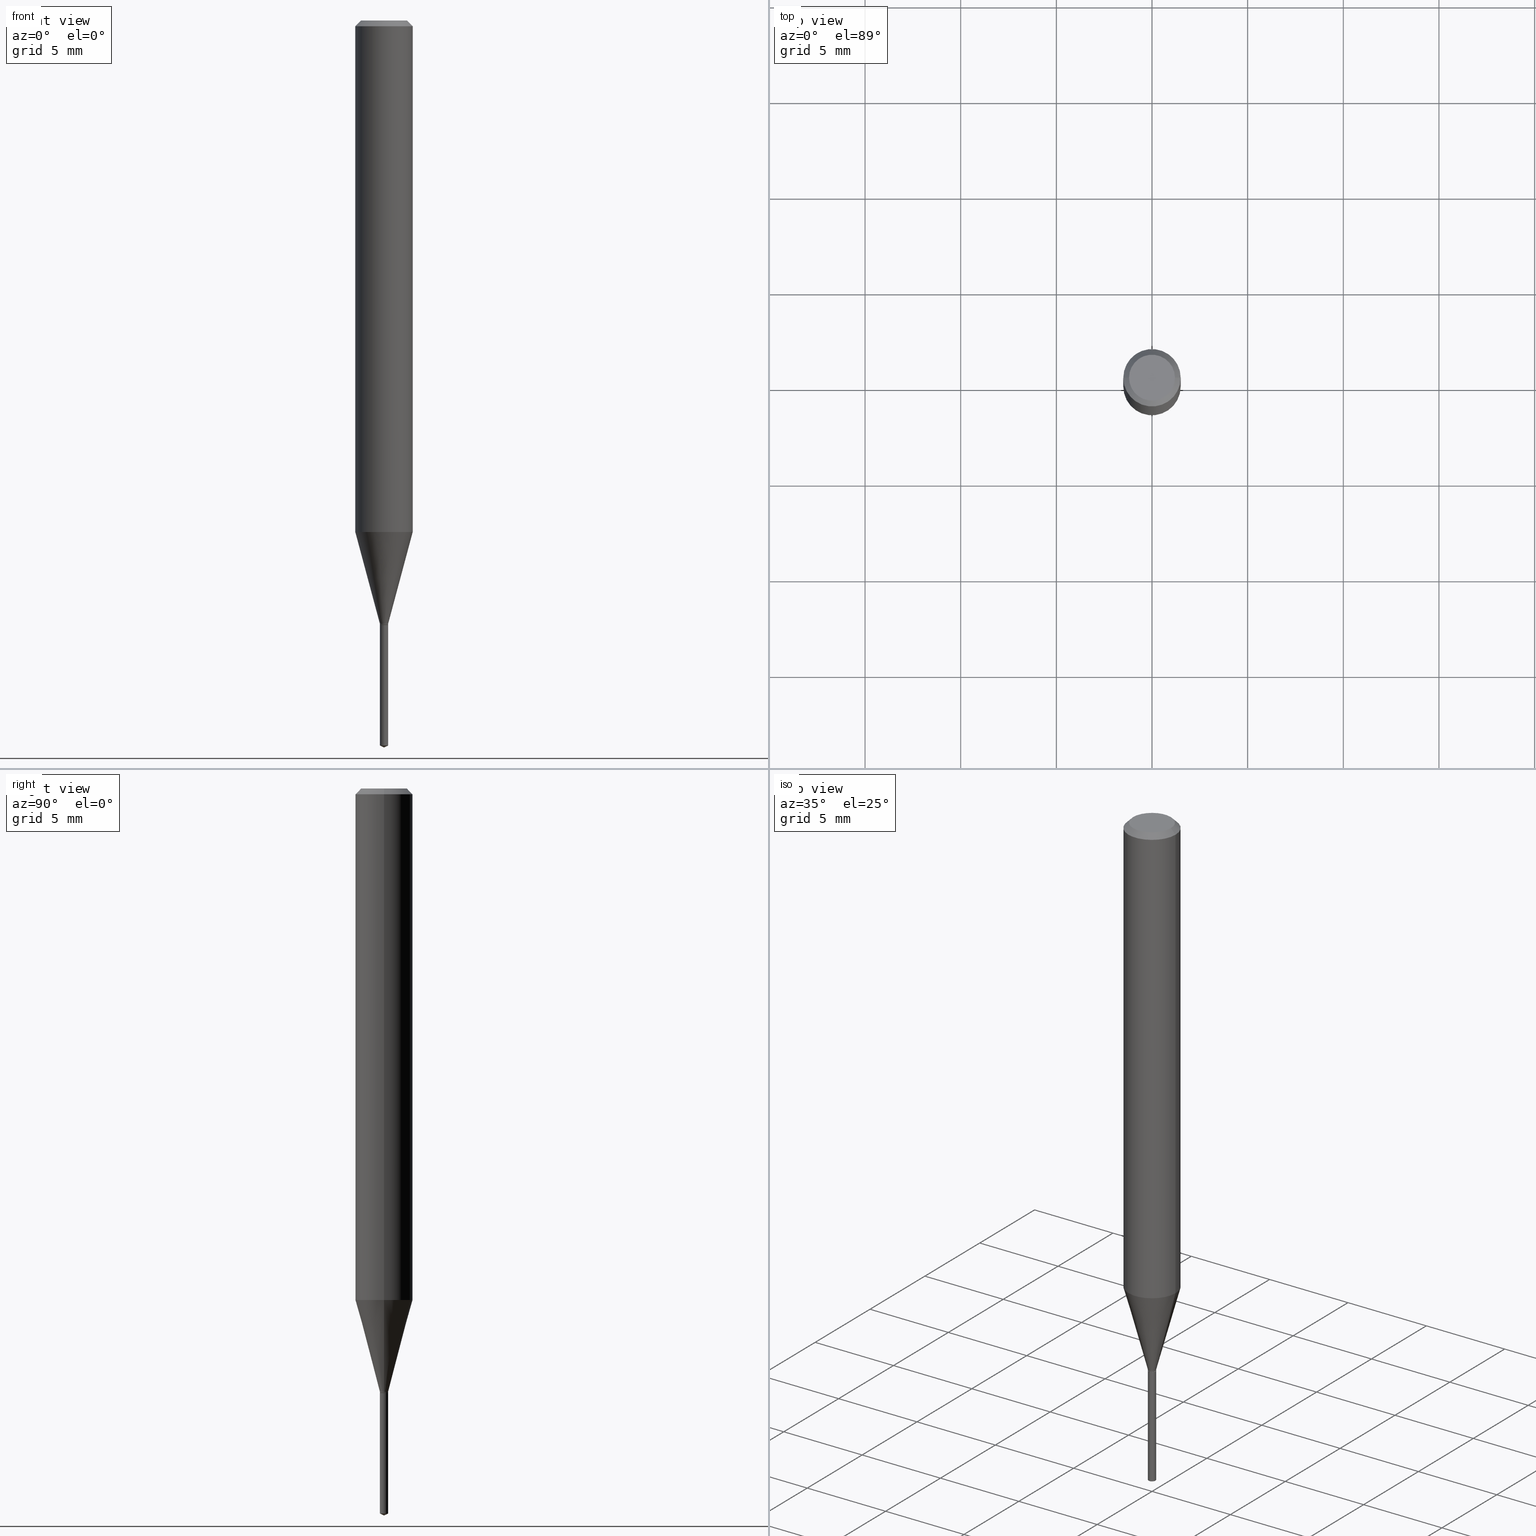
[diagram: canonical four-view strip — front | top / right | iso, engineering-drawing reading convention]
A machine part, canonical four-view strip (front | top / right | iso — engineering-drawing reading convention). The complete STEP part file that produces these views, byte-faithful:
ISO-10303-21;
HEADER;
FILE_DESCRIPTION (( 'STEP AP203' ),
    '1' );
FILE_NAME ('08084.STEP',
    '2024-04-24T10:58:54',
    ( '' ),
    ( '' ),
    'SwSTEP 2.0',
    'SolidWorks 2023',
    '' );
FILE_SCHEMA (( 'CONFIG_CONTROL_DESIGN' ));
ENDSEC;

DATA;
#1 = CARTESIAN_POINT ( 'NONE',  ( -0.008449999999999999178, -4.278473850474763688E-15, -1.243600000000000039 ) ) ;
#2 = FACE_OUTER_BOUND ( 'NONE', #287, .T. ) ;
#3 = LINE ( 'NONE', #297, #263 ) ;
#4 = FACE_OUTER_BOUND ( 'NONE', #174, .T. ) ;
#5 = DIRECTION ( 'NONE',  ( 0.2588190451025211836, 1.565188264969622559E-15, 0.9659258262890679791 ) ) ;
#6 =( GEOMETRIC_REPRESENTATION_CONTEXT ( 3 ) GLOBAL_UNCERTAINTY_ASSIGNED_CONTEXT ( ( #448 ) ) GLOBAL_UNIT_ASSIGNED_CONTEXT ( ( #258, #72, #407 ) ) REPRESENTATION_CONTEXT ( 'NONE', 'WORKASPACE' ) );
#7 = DIRECTION ( 'NONE',  ( -2.445468806185136597E-29, 3.491481338843145583E-15, 1.000000000000000000 ) ) ;
#8 = DIRECTION ( 'NONE',  ( 1.000000000000000000, 0.000000000000000000, 0.000000000000000000 ) ) ;
#9 = CARTESIAN_POINT ( 'NONE',  ( 3.042407741774928155E-29, -4.343751933654757151E-15, -1.244099999999999984 ) ) ;
#10 = DATE_AND_TIME ( #165, #295 ) ;
#11 = CARTESIAN_POINT ( 'NONE',  ( -5.900603462641852024E-17, -0.008450000000004342926, -1.244099999999999984 ) ) ;
#12 = DATE_AND_TIME ( #458, #444 ) ;
#13 = CIRCLE ( 'NONE', #408, 0.008449999999999999178 ) ;
#14 = DIRECTION ( 'NONE',  ( -6.982962677686265922E-15, -1.000000000000000000, 0.000000000000000000 ) ) ;
#15 = CALENDAR_DATE ( 2024, 24, 4 ) ;
#16 = VERTEX_POINT ( 'NONE', #103 ) ;
#17 = SHAPE_DEFINITION_REPRESENTATION ( #144, #48 ) ;
#18 = CC_DESIGN_PERSON_AND_ORGANIZATION_ASSIGNMENT ( #46, #466, ( #247 ) ) ;
#19 = ORIENTED_EDGE ( 'NONE', *, *, #326, .T. ) ;
#20 = AXIS2_PLACEMENT_3D ( 'NONE', #273, #337, #234 ) ;
#21 = CIRCLE ( 'NONE', #333, 0.04724000000000000421 ) ;
#22 = ORIENTED_EDGE ( 'NONE', *, *, #112, .T. ) ;
#23 = CIRCLE ( 'NONE', #393, 0.008449999999999999178 ) ;
#24 = CARTESIAN_POINT ( 'NONE',  ( 3.042407741774928155E-29, -4.343751933654757151E-15, -1.244099999999999984 ) ) ;
#25 = ADVANCED_FACE ( 'NONE', ( #330 ), #105, .T. ) ;
#26 = DIRECTION ( 'NONE',  ( -6.328713451373322836E-15, -0.9063077870366416100, 0.4226182617407170383 ) ) ;
#27 = ORIENTED_EDGE ( 'NONE', *, *, #111, .T. ) ;
#28 = DIRECTION ( 'NONE',  ( 0.7071067811865453523, -7.319954787623248157E-15, -0.7071067811865496822 ) ) ;
#29 = ORIENTED_EDGE ( 'NONE', *, *, #163, .F. ) ;
#30 = AXIS2_PLACEMENT_3D ( 'NONE', #62, #483, #57 ) ;
#31 = APPROVAL_PERSON_ORGANIZATION ( #87, #74, #386 ) ;
#32 = FACE_OUTER_BOUND ( 'NONE', #213, .T. ) ;
#33 = CARTESIAN_POINT ( 'NONE',  ( 6.004086117175886799E-17, 0.008449999999995655431, -1.244099999999999984 ) ) ;
#34 = FACE_OUTER_BOUND ( 'NONE', #209, .T. ) ;
#35 = ORIENTED_EDGE ( 'NONE', *, *, #304, .T. ) ;
#36 = DIRECTION ( 'NONE',  ( -2.445468806185136597E-29, 3.491481338843145583E-15, 1.000000000000000000 ) ) ;
#37 = ORIENTED_EDGE ( 'NONE', *, *, #233, .T. ) ;
#38 = AXIS2_PLACEMENT_3D ( 'NONE', #52, #137, #204 ) ;
#39 = CARTESIAN_POINT ( 'NONE',  ( 3.041185007371835914E-29, -4.342006192985336437E-15, -1.243600000000000039 ) ) ;
#40 = EDGE_CURVE ( 'NONE', #152, #94, #367, .T. ) ;
#41 = DIRECTION ( 'NONE',  ( -2.445468806185136597E-29, 3.491481338843145583E-15, 1.000000000000000000 ) ) ;
#42 = PLANE ( 'NONE',  #20 ) ;
#43 = DIRECTION ( 'NONE',  ( -2.438088387897960049E-29, 3.491481338843145188E-15, 1.000000000000000000 ) ) ;
#44 = DIRECTION ( 'NONE',  ( -2.445453018118844559E-29, 3.491503948252676758E-15, 1.000000000000000000 ) ) ;
#45 = VECTOR ( 'NONE', #292, 39.37007874015748143 ) ;
#46 = PERSON_AND_ORGANIZATION ( #329, #241 ) ;
#47 = CARTESIAN_POINT ( 'NONE',  ( 6.004086117176494469E-17, 0.008449999999994789804, -1.492159700288590019 ) ) ;
#48 = ADVANCED_BREP_SHAPE_REPRESENTATION ( '08084', ( #291, #456, #169 ), #6 ) ;
#49 = DATE_AND_TIME ( #15, #256 ) ;
#50 = CARTESIAN_POINT ( 'NONE',  ( 8.265746106709734507E-48, -1.180129479067563789E-33, -3.380025165646692144E-19 ) ) ;
#51 = COORDINATED_UNIVERSAL_TIME_OFFSET ( 5, 0, .BEHIND. ) ;
#52 = CARTESIAN_POINT ( 'NONE',  ( 3.036294069759465269E-29, -4.335023230307649634E-15, -1.241600000000000037 ) ) ;
#53 = APPROVAL_STATUS ( 'not_yet_approved' ) ;
#54 = VECTOR ( 'NONE', #132, 39.37007874015748143 ) ;
#55 = ORIENTED_EDGE ( 'NONE', *, *, #434, .T. ) ;
#56 = EDGE_CURVE ( 'NONE', #475, #133, #182, .T. ) ;
#57 = DIRECTION ( 'NONE',  ( -1.000000000000000000, 6.982962677686266711E-15, 0.000000000000000000 ) ) ;
#58 = ORIENTED_EDGE ( 'NONE', *, *, #131, .T. ) ;
#59 = FACE_OUTER_BOUND ( 'NONE', #225, .T. ) ;
#60 = ADVANCED_FACE ( 'NONE', ( #449 ), #42, .F. ) ;
#61 = ORIENTED_EDGE ( 'NONE', *, *, #115, .T. ) ;
#62 = CARTESIAN_POINT ( 'NONE',  ( 2.888098660104664204E-31, -4.123439461173780263E-17, -0.01181000000000007218 ) ) ;
#63 = EDGE_LOOP ( 'NONE', ( #324, #440, #180, #281 ) ) ;
#64 = CARTESIAN_POINT ( 'NONE',  ( -0.05904999999999999832, 3.711095515056362547E-16, -0.01181000000000007218 ) ) ;
#65 = DIRECTION ( 'NONE',  ( 1.000000000000000000, -6.982962677686293532E-15, 0.000000000000000000 ) ) ;
#66 = VECTOR ( 'NONE', #26, 39.37007874015748143 ) ;
#67 = APPROVAL_PERSON_ORGANIZATION ( #383, #356, #425 ) ;
#68 = DIRECTION ( 'NONE',  ( -2.445468806185136597E-29, 3.491481338843145583E-15, 1.000000000000000000 ) ) ;
#69 = ORIENTED_EDGE ( 'NONE', *, *, #366, .F. ) ;
#70 = PRODUCT ( '08084', '08084', '', ( #79 ) ) ;
#71 = ORIENTED_EDGE ( 'NONE', *, *, #437, .T. ) ;
#72 =( NAMED_UNIT ( * ) PLANE_ANGLE_UNIT ( ) SI_UNIT ( $, .RADIAN. ) );
#73 = ORIENTED_EDGE ( 'NONE', *, *, #56, .T. ) ;
#74 = APPROVAL ( #266, 'UNSPECIFIED' ) ;
#75 = CYLINDRICAL_SURFACE ( 'NONE', #409, 0.008449999999999999178 ) ;
#76 = CARTESIAN_POINT ( 'NONE',  ( 0.000000000000000000, 0.000000000000000000, 0.000000000000000000 ) ) ;
#77 = FACE_OUTER_BOUND ( 'NONE', #92, .T. ) ;
#78 = DIRECTION ( 'NONE',  ( -2.445468806185136877E-29, 3.491481338843145188E-15, 1.000000000000000000 ) ) ;
#79 = MECHANICAL_CONTEXT ( 'NONE', #249, 'mechanical' ) ;
#80 = ADVANCED_FACE ( 'NONE', ( #2 ), #126, .T. ) ;
#81 = CARTESIAN_POINT ( 'NONE',  ( 0.05905000000000006771, -4.123439461173745257E-16, 2.879382386107503723E-30 ) ) ;
#82 = PERSON_AND_ORGANIZATION_ROLE ( 'design_supplier' ) ;
#83 = CIRCLE ( 'NONE', #450, 0.008449999999999999178 ) ;
#84 = LOCAL_TIME ( 6, 58, 54.00000000000000000, #268 ) ;
#85 = DIRECTION ( 'NONE',  ( -6.982962677686266711E-15, -1.000000000000000000, 3.520397390770616770E-15 ) ) ;
#86 = CARTESIAN_POINT ( 'NONE',  ( -0.008449999999999999178, -4.274982369135920681E-15, -1.241600000000000037 ) ) ;
#87 = PERSON_AND_ORGANIZATION ( #329, #241 ) ;
#88 = DIRECTION ( 'NONE',  ( 1.000000000000000000, -6.982962677686291165E-15, 0.000000000000000000 ) ) ;
#89 = EDGE_LOOP ( 'NONE', ( #427, #260, #73, #277 ) ) ;
#90 = APPROVAL_ROLE ( '' ) ;
#91 = CIRCLE ( 'NONE', #343, 0.05904999999999999832 ) ;
#92 = EDGE_LOOP ( 'NONE', ( #135, #354 ) ) ;
#93 = PRODUCT_RELATED_PRODUCT_CATEGORY ( 'detail', '', ( #70 ) ) ;
#94 = VERTEX_POINT ( 'NONE', #384 ) ;
#95 = APPLICATION_CONTEXT ( 'configuration controlled 3d designs of mechanical parts and assemblies' ) ;
#96 = LINE ( 'NONE', #464, #219 ) ;
#97 = AXIS2_PLACEMENT_3D ( 'NONE', #117, #261, #85 ) ;
#98 = CIRCLE ( 'NONE', #469, 0.05905000000000013710 ) ;
#99 = SECURITY_CLASSIFICATION ( '', '', #272 ) ;
#100 = CARTESIAN_POINT ( 'NONE',  ( -0.04724000000000000421, 3.504923541997677355E-16, -3.380025165670481712E-19 ) ) ;
#101 = ORIENTED_EDGE ( 'NONE', *, *, #212, .F. ) ;
#102 = FACE_OUTER_BOUND ( 'NONE', #220, .T. ) ;
#103 = CARTESIAN_POINT ( 'NONE',  ( -0.007949999999999998734, -4.284614558987718685E-15, -1.244099999999999984 ) ) ;
#104 = DIRECTION ( 'NONE',  ( 1.000000000000000000, -6.982962677686265922E-15, 4.876176775795935793E-29 ) ) ;
#105 = CONICAL_SURFACE ( 'NONE', #173, 0.008449999999999999178, 0.2617993877991499074 ) ;
#106 = ORIENTED_EDGE ( 'NONE', *, *, #112, .F. ) ;
#107 = VECTOR ( 'NONE', #230, 39.37007874015748854 ) ;
#108 = CC_DESIGN_SECURITY_CLASSIFICATION ( #99, ( #344 ) ) ;
#109 = CARTESIAN_POINT ( 'NONE',  ( -0.007949999999999998734, -4.287263786161829886E-15, -1.244099999999999984 ) ) ;
#110 = ORIENTED_EDGE ( 'NONE', *, *, #157, .F. ) ;
#111 = EDGE_CURVE ( 'NONE', #435, #490, #332, .T. ) ;
#112 = EDGE_CURVE ( 'NONE', #133, #250, #262, .T. ) ;
#113 = ORIENTED_EDGE ( 'NONE', *, *, #442, .F. ) ;
#114 = CARTESIAN_POINT ( 'NONE',  ( 3.042407741774928155E-29, -4.343751933654757151E-15, -1.244099999999999984 ) ) ;
#115 = EDGE_CURVE ( 'NONE', #334, #435, #303, .T. ) ;
#116 = ADVANCED_FACE ( 'NONE', ( #342 ), #415, .T. ) ;
#117 = CARTESIAN_POINT ( 'NONE',  ( -9.261901597635378744E-28, 1.322371744356641908E-13, 37.87397874015748300 ) ) ;
#118 = AXIS2_PLACEMENT_3D ( 'NONE', #285, #436, #385 ) ;
#119 = DIRECTION ( 'NONE',  ( 1.000000000000000000, -6.982962677686266711E-15, 4.876176775795936353E-29 ) ) ;
#120 = CARTESIAN_POINT ( 'NONE',  ( 3.042407741774928155E-29, -4.343751933654757151E-15, -1.244099999999999984 ) ) ;
#121 = DIRECTION ( 'NONE',  ( 0.000000000000000000, 0.000000000000000000, 1.000000000000000000 ) ) ;
#122 = DIRECTION ( 'NONE',  ( -2.445468806185136597E-29, 3.491481338843145583E-15, 1.000000000000000000 ) ) ;
#123 = EDGE_CURVE ( 'NONE', #327, #424, #21, .T. ) ;
#124 = CALENDAR_DATE ( 2024, 24, 4 ) ;
#125 = DIRECTION ( 'NONE',  ( 1.000000000000000000, -6.982962677686265922E-15, 4.876176775795935232E-29 ) ) ;
#126 = CONICAL_SURFACE ( 'NONE', #97, 84.42940631927042716, 1.134464013796298243 ) ;
#127 = PERSON_AND_ORGANIZATION ( #329, #241 ) ;
#128 = CIRCLE ( 'NONE', #140, 0.007949999999999998734 ) ;
#129 = DIRECTION ( 'NONE',  ( -2.445468806185136597E-29, 3.491481338843145583E-15, 1.000000000000000000 ) ) ;
#130 = CALENDAR_DATE ( 2024, 24, 4 ) ;
#131 = EDGE_CURVE ( 'NONE', #141, #490, #347, .T. ) ;
#132 = DIRECTION ( 'NONE',  ( -2.445468806185136877E-29, 3.491481338843145188E-15, 1.000000000000000000 ) ) ;
#133 = VERTEX_POINT ( 'NONE', #459 ) ;
#134 = AXIS2_PLACEMENT_3D ( 'NONE', #9, #44, #455 ) ;
#135 = ORIENTED_EDGE ( 'NONE', *, *, #371, .F. ) ;
#136 = ADVANCED_FACE ( 'NONE', ( #308 ), #410, .T. ) ;
#137 = DIRECTION ( 'NONE',  ( -2.445468806185136597E-29, 3.491481338843145583E-15, 1.000000000000000000 ) ) ;
#138 = EDGE_LOOP ( 'NONE', ( #396, #289 ) ) ;
#139 = CARTESIAN_POINT ( 'NONE',  ( 2.574487409809273648E-29, -3.675685711345442861E-15, -1.052758229137014556 ) ) ;
#140 = AXIS2_PLACEMENT_3D ( 'NONE', #120, #7, #88 ) ;
#141 = VERTEX_POINT ( 'NONE', #270 ) ;
#142 = AXIS2_PLACEMENT_3D ( 'NONE', #191, #149, #488 ) ;
#143 = CARTESIAN_POINT ( 'NONE',  ( 3.658642260407602849E-29, -5.223639056980828932E-15, -1.496099999999999985 ) ) ;
#144 = PRODUCT_DEFINITION_SHAPE ( 'NONE', 'NONE',  #247 ) ;
#145 = EDGE_CURVE ( 'NONE', #283, #362, #202, .T. ) ;
#146 = EDGE_LOOP ( 'NONE', ( #227, #55, #465, #177 ) ) ;
#147 = CARTESIAN_POINT ( 'NONE',  ( 3.042407741774928155E-29, -4.343751933654757151E-15, -1.244099999999999984 ) ) ;
#148 = ORIENTED_EDGE ( 'NONE', *, *, #462, .F. ) ;
#149 = DIRECTION ( 'NONE',  ( 2.438088387897960049E-29, -3.491481338843145188E-15, -1.000000000000000000 ) ) ;
#150 = ORIENTED_EDGE ( 'NONE', *, *, #434, .F. ) ;
#151 = CARTESIAN_POINT ( 'NONE',  ( 0.04724000000000000421, -3.852183633974369345E-16, -3.380025165621689721E-19 ) ) ;
#152 = VERTEX_POINT ( 'NONE', #47 ) ;
#153 = EDGE_CURVE ( 'NONE', #391, #152, #417, .T. ) ;
#154 = CARTESIAN_POINT ( 'NONE',  ( 8.265746106709734507E-48, -1.180129479067563789E-33, -3.380025165646692144E-19 ) ) ;
#155 = CARTESIAN_POINT ( 'NONE',  ( -0.05905000000000006771, 4.195754854663396409E-16, -2.904631170795525045E-30 ) ) ;
#156 =( LENGTH_UNIT ( ) NAMED_UNIT ( * ) SI_UNIT ( $, .METRE. ) );
#157 = EDGE_CURVE ( 'NONE', #438, #475, #232, .T. ) ;
#158 = CARTESIAN_POINT ( 'NONE',  ( -9.261901597635378744E-28, 1.322371744356641908E-13, 37.87397874015748300 ) ) ;
#159 = CIRCLE ( 'NONE', #167, 0.008449999999999999178 ) ;
#160 = DIRECTION ( 'NONE',  ( -2.445453018118844559E-29, 3.491503948252676758E-15, 1.000000000000000000 ) ) ;
#161 = AXIS2_PLACEMENT_3D ( 'NONE', #154, #68, #223 ) ;
#162 = DIRECTION ( 'NONE',  ( -2.445468806185136597E-29, 3.491481338843145583E-15, 1.000000000000000000 ) ) ;
#163 = EDGE_CURVE ( 'NONE', #250, #334, #237, .T. ) ;
#164 = DIRECTION ( 'NONE',  ( 1.000000000000000000, -6.982962677686266711E-15, 4.876185090822587894E-29 ) ) ;
#165 = CALENDAR_DATE ( 2024, 24, 4 ) ;
#166 = CARTESIAN_POINT ( 'NONE',  ( 3.658681888747289821E-29, -5.223582800248033507E-15, -1.496099999999999985 ) ) ;
#167 = AXIS2_PLACEMENT_3D ( 'NONE', #423, #178, #361 ) ;
#168 = CC_DESIGN_DATE_AND_TIME_ASSIGNMENT ( #198, #311, ( #247 ) ) ;
#169 = AXIS2_PLACEMENT_3D ( 'NONE', #414, #121, #8 ) ;
#170 = DIRECTION ( 'NONE',  ( 1.000000000000000000, -6.982962677686265922E-15, 4.876176775795935232E-29 ) ) ;
#171 = ORIENTED_EDGE ( 'NONE', *, *, #353, .T. ) ;
#172 = ORIENTED_EDGE ( 'NONE', *, *, #115, .F. ) ;
#173 = AXIS2_PLACEMENT_3D ( 'NONE', #252, #398, #65 ) ;
#174 = EDGE_LOOP ( 'NONE', ( #184, #403, #69 ) ) ;
#175 = CARTESIAN_POINT ( 'NONE',  ( -0.008449999999999999178, -4.278473850474763688E-15, -1.241600000000000037 ) ) ;
#176 = CARTESIAN_POINT ( 'NONE',  ( -5.900603462641852024E-17, -0.008450000000004342926, -1.244099999999999984 ) ) ;
#177 = ORIENTED_EDGE ( 'NONE', *, *, #353, .F. ) ;
#178 = DIRECTION ( 'NONE',  ( -2.445453018118844559E-29, 3.491503948252676758E-15, 1.000000000000000000 ) ) ;
#179 = AXIS2_PLACEMENT_3D ( 'NONE', #24, #282, #394 ) ;
#180 = ORIENTED_EDGE ( 'NONE', *, *, #348, .F. ) ;
#181 = CARTESIAN_POINT ( 'NONE',  ( 0.000000000000000000, 0.000000000000000000, 0.000000000000000000 ) ) ;
#182 = LINE ( 'NONE', #200, #235 ) ;
#183 = CARTESIAN_POINT ( 'NONE',  ( -0.05904999999999999832, -1.438884567512250013E-15, -0.01181000000000007218 ) ) ;
#184 = ORIENTED_EDGE ( 'NONE', *, *, #379, .F. ) ;
#185 = APPROVAL ( #53, 'UNSPECIFIED' ) ;
#186 = FACE_OUTER_BOUND ( 'NONE', #138, .T. ) ;
#187 = ORIENTED_EDGE ( 'NONE', *, *, #157, .T. ) ;
#188 = CIRCLE ( 'NONE', #471, 0.008449999999999999178 ) ;
#189 = CYLINDRICAL_SURFACE ( 'NONE', #286, 0.05905000000000006771 ) ;
#190 = CARTESIAN_POINT ( 'NONE',  ( 3.036294069759465269E-29, -4.335023230307649634E-15, -1.241600000000000037 ) ) ;
#191 = CARTESIAN_POINT ( 'NONE',  ( 4.132873053354867254E-48, -5.900647395337818946E-34, -1.690012582823346072E-19 ) ) ;
#192 = DIRECTION ( 'NONE',  ( -2.445468806185136597E-29, 3.491481338843145583E-15, 1.000000000000000000 ) ) ;
#193 = PLANE ( 'NONE',  #142 ) ;
#194 = CC_DESIGN_PERSON_AND_ORGANIZATION_ASSIGNMENT ( #454, #421, ( #70 ) ) ;
#195 = DIRECTION ( 'NONE',  ( 1.000000000000000000, -6.982962677686235156E-15, 0.000000000000000000 ) ) ;
#196 = VECTOR ( 'NONE', #474, 39.37007874015748143 ) ;
#197 = VECTOR ( 'NONE', #78, 39.37007874015748143 ) ;
#198 = DATE_AND_TIME ( #124, #84 ) ;
#199 = AXIS2_PLACEMENT_3D ( 'NONE', #338, #36, #302 ) ;
#200 = CARTESIAN_POINT ( 'NONE',  ( 0.008449999999999999178, -5.900603462644894069E-17, 4.120369375547564925E-31 ) ) ;
#201 = APPROVAL_DATE_TIME ( #49, #185 ) ;
#202 = LINE ( 'NONE', #11, #211 ) ;
#203 = PERSON_AND_ORGANIZATION ( #329, #241 ) ;
#204 = DIRECTION ( 'NONE',  ( 1.000000000000000000, -6.982962677686293532E-15, 0.000000000000000000 ) ) ;
#205 = PERSON_AND_ORGANIZATION ( #329, #241 ) ;
#206 = CC_DESIGN_APPROVAL ( #74, ( #344 ) ) ;
#207 = ORIENTED_EDGE ( 'NONE', *, *, #400, .T. ) ;
#208 = DATE_TIME_ROLE ( 'classification_date' ) ;
#209 = EDGE_LOOP ( 'NONE', ( #172, #360, #58, #259 ) ) ;
#210 = DIRECTION ( 'NONE',  ( -2.445453018118844559E-29, 3.491503948252676758E-15, 1.000000000000000000 ) ) ;
#211 = VECTOR ( 'NONE', #412, 39.37007874015748143 ) ;
#212 = EDGE_CURVE ( 'NONE', #475, #404, #188, .T. ) ;
#213 = EDGE_LOOP ( 'NONE', ( #35, #61, #296, #215 ) ) ;
#214 = DIRECTION ( 'NONE',  ( -2.445468806185136597E-29, 3.491481338843145583E-15, 1.000000000000000000 ) ) ;
#215 = ORIENTED_EDGE ( 'NONE', *, *, #131, .F. ) ;
#216 = DIRECTION ( 'NONE',  ( -2.445468806185136597E-29, 3.491481338843145583E-15, 1.000000000000000000 ) ) ;
#217 = ORIENTED_EDGE ( 'NONE', *, *, #257, .F. ) ;
#218 = LINE ( 'NONE', #430, #54 ) ;
#219 = VECTOR ( 'NONE', #28, 39.37007874015748143 ) ;
#220 = EDGE_LOOP ( 'NONE', ( #406, #226, #207, #217 ) ) ;
#221 = VECTOR ( 'NONE', #229, 39.37007874015748143 ) ;
#222 = EDGE_CURVE ( 'NONE', #404, #475, #83, .T. ) ;
#223 = DIRECTION ( 'NONE',  ( 1.000000000000000000, -6.982962677686266711E-15, 4.876185090822587894E-29 ) ) ;
#224 = ADVANCED_FACE ( 'NONE', ( #4 ), #357, .T. ) ;
#225 = EDGE_LOOP ( 'NONE', ( #148, #37, #187, #244 ) ) ;
#226 = ORIENTED_EDGE ( 'NONE', *, *, #284, .T. ) ;
#227 = ORIENTED_EDGE ( 'NONE', *, *, #40, .F. ) ;
#228 = CIRCLE ( 'NONE', #118, 0.05905000000000013710 ) ;
#229 = DIRECTION ( 'NONE',  ( -0.7071067811866191821, 7.493145998870612907E-15, 0.7071067811864758523 ) ) ;
#230 = DIRECTION ( 'NONE',  ( -0.2588190451025211836, 5.211531920934547886E-15, 0.9659258262890679791 ) ) ;
#231 = DIRECTION ( 'NONE',  ( -6.982962677686265922E-15, -1.000000000000000000, 0.000000000000000000 ) ) ;
#232 = LINE ( 'NONE', #420, #294 ) ;
#233 = EDGE_CURVE ( 'NONE', #16, #438, #128, .T. ) ;
#234 = DIRECTION ( 'NONE',  ( 6.982962677686265922E-15, 1.000000000000000000, -3.491503948252676363E-15 ) ) ;
#235 = VECTOR ( 'NONE', #306, 39.37007874015748143 ) ;
#236 = COORDINATED_UNIVERSAL_TIME_OFFSET ( 5, 0, .BEHIND. ) ;
#237 = LINE ( 'NONE', #86, #107 ) ;
#238 = DIRECTION ( 'NONE',  ( -1.000000000000000000, 6.982962677686266711E-15, 0.000000000000000000 ) ) ;
#239 = CYLINDRICAL_SURFACE ( 'NONE', #351, 0.008449999999999999178 ) ;
#240 = PERSON_AND_ORGANIZATION ( #329, #241 ) ;
#241 = ORGANIZATION ( 'UNSPECIFIED', 'UNSPECIFIED', '' ) ;
#242 = EDGE_LOOP ( 'NONE', ( #255, #369, #312, #27 ) ) ;
#243 = ADVANCED_FACE ( 'NONE', ( #102 ), #479, .T. ) ;
#244 = ORIENTED_EDGE ( 'NONE', *, *, #222, .F. ) ;
#245 = DIRECTION ( 'NONE',  ( 1.000000000000000000, -6.982962677686264344E-15, 0.000000000000000000 ) ) ;
#246 = AXIS2_PLACEMENT_3D ( 'NONE', #309, #397, #238 ) ;
#247 = PRODUCT_DEFINITION ( 'UNKNOWN', '', #344, #468 ) ;
#248 = FACE_OUTER_BOUND ( 'NONE', #484, .T. ) ;
#249 = APPLICATION_CONTEXT ( 'configuration controlled 3d designs of mechanical parts and assemblies' ) ;
#250 = VERTEX_POINT ( 'NONE', #175 ) ;
#251 = CARTESIAN_POINT ( 'NONE',  ( 2.888098660104664204E-31, -4.123439461173780263E-17, -0.01181000000000007218 ) ) ;
#252 = CARTESIAN_POINT ( 'NONE',  ( 3.036294069759465269E-29, -4.335023230307649634E-15, -1.241600000000000037 ) ) ;
#253 = CARTESIAN_POINT ( 'NONE',  ( 0.05904999999999999832, -4.535783407291118600E-16, -0.01181000000000007218 ) ) ;
#254 = AXIS2_PLACEMENT_3D ( 'NONE', #181, #325, #350 ) ;
#255 = ORIENTED_EDGE ( 'NONE', *, *, #284, .F. ) ;
#256 = LOCAL_TIME ( 6, 58, 54.00000000000000000, #236 ) ;
#257 = EDGE_CURVE ( 'NONE', #327, #435, #317, .T. ) ;
#258 =( CONVERSION_BASED_UNIT ( 'INCH', #401 ) LENGTH_UNIT ( ) NAMED_UNIT ( #467 ) );
#259 = ORIENTED_EDGE ( 'NONE', *, *, #111, .F. ) ;
#260 = ORIENTED_EDGE ( 'NONE', *, *, #222, .T. ) ;
#261 = DIRECTION ( 'NONE',  ( -2.445453018118844559E-29, 3.491503948252676758E-15, 1.000000000000000000 ) ) ;
#262 = CIRCLE ( 'NONE', #441, 0.008449999999999999178 ) ;
#263 = VECTOR ( 'NONE', #5, 39.37007874015748854 ) ;
#264 = CARTESIAN_POINT ( 'NONE',  ( 0.008449999999999999178, -4.401012227611784835E-15, -1.243600000000000039 ) ) ;
#265 = CARTESIAN_POINT ( 'NONE',  ( 3.041185007371835914E-29, -4.342006192985336437E-15, -1.243600000000000039 ) ) ;
#266 = APPROVAL_STATUS ( 'not_yet_approved' ) ;
#267 = DIRECTION ( 'NONE',  ( 1.000000000000000000, -6.982962677686293532E-15, 0.000000000000000000 ) ) ;
#268 = COORDINATED_UNIVERSAL_TIME_OFFSET ( 5, 0, .BEHIND. ) ;
#269 = CC_DESIGN_PERSON_AND_ORGANIZATION_ASSIGNMENT ( #240, #416, ( #344 ) ) ;
#270 = CARTESIAN_POINT ( 'NONE',  ( 0.05905000000000013710, -4.088029657462817781E-15, -1.052758229137014556 ) ) ;
#271 = AXIS2_PLACEMENT_3D ( 'NONE', #158, #301, #453 ) ;
#272 = SECURITY_CLASSIFICATION_LEVEL ( 'unclassified' ) ;
#273 = CARTESIAN_POINT ( 'NONE',  ( 3.042407741774928155E-29, -4.343751933654757151E-15, -1.244099999999999984 ) ) ;
#274 = FACE_OUTER_BOUND ( 'NONE', #242, .T. ) ;
#275 = ORIENTED_EDGE ( 'NONE', *, *, #304, .F. ) ;
#276 = PERSON_AND_ORGANIZATION_ROLE ( 'classification_officer' ) ;
#277 = ORIENTED_EDGE ( 'NONE', *, *, #437, .F. ) ;
#278 = CLOSED_SHELL ( 'NONE', ( #413, #243, #335, #25, #136, #363, #316, #422, #345, #451, #429, #373 ) ) ;
#279 = AXIS2_PLACEMENT_3D ( 'NONE', #481, #214, #319 ) ;
#280 = AXIS2_PLACEMENT_3D ( 'NONE', #447, #43, #104 ) ;
#281 = ORIENTED_EDGE ( 'NONE', *, *, #145, .F. ) ;
#282 = DIRECTION ( 'NONE',  ( -2.445468806185136597E-29, 3.491481338843145583E-15, 1.000000000000000000 ) ) ;
#283 = VERTEX_POINT ( 'NONE', #476 ) ;
#284 = EDGE_CURVE ( 'NONE', #424, #490, #96, .T. ) ;
#285 = CARTESIAN_POINT ( 'NONE',  ( 2.574487409809273648E-29, -3.675685711345442861E-15, -1.052758229137014556 ) ) ;
#286 = AXIS2_PLACEMENT_3D ( 'NONE', #375, #41, #119 ) ;
#287 = EDGE_LOOP ( 'NONE', ( #431, #392, #150 ) ) ;
#288 = CARTESIAN_POINT ( 'NONE',  ( 3.658642260407602849E-29, -5.223639056980828932E-15, -1.496099999999999985 ) ) ;
#289 = ORIENTED_EDGE ( 'NONE', *, *, #428, .T. ) ;
#290 = DIRECTION ( 'NONE',  ( -2.445453018118844559E-29, 3.491503948252676758E-15, 1.000000000000000000 ) ) ;
#291 = MANIFOLD_SOLID_BREP ( 'Body-Move/Copy2[1]', #399 ) ;
#292 = DIRECTION ( 'NONE',  ( -2.445453018118844278E-29, 3.491503948252676363E-15, 1.000000000000000000 ) ) ;
#293 = FACE_OUTER_BOUND ( 'NONE', #63, .T. ) ;
#294 = VECTOR ( 'NONE', #300, 39.37007874015748143 ) ;
#295 = LOCAL_TIME ( 6, 58, 54.00000000000000000, #51 ) ;
#296 = ORIENTED_EDGE ( 'NONE', *, *, #400, .F. ) ;
#297 = CARTESIAN_POINT ( 'NONE',  ( 0.008449999999999999178, -4.394029264934098821E-15, -1.241600000000000037 ) ) ;
#298 = ORIENTED_EDGE ( 'NONE', *, *, #341, .F. ) ;
#299 = PLANE ( 'NONE',  #280 ) ;
#300 = DIRECTION ( 'NONE',  ( 0.7071067811866191821, -2.468850131083007662E-15, 0.7071067811864758523 ) ) ;
#301 = DIRECTION ( 'NONE',  ( -2.445453018118844559E-29, 3.491503948252676758E-15, 1.000000000000000000 ) ) ;
#302 = DIRECTION ( 'NONE',  ( 1.000000000000000000, -6.982962677686291165E-15, 0.000000000000000000 ) ) ;
#303 = LINE ( 'NONE', #155, #313 ) ;
#304 = EDGE_CURVE ( 'NONE', #141, #334, #98, .T. ) ;
#305 = APPLICATION_PROTOCOL_DEFINITION ( 'international standard', 'config_control_design', 1994, #249 ) ;
#306 = DIRECTION ( 'NONE',  ( -2.445468806185136877E-29, 3.491481338843145188E-15, 1.000000000000000000 ) ) ;
#307 = COORDINATED_UNIVERSAL_TIME_OFFSET ( 5, 0, .BEHIND. ) ;
#308 = FACE_OUTER_BOUND ( 'NONE', #445, .T. ) ;
#309 = CARTESIAN_POINT ( 'NONE',  ( 2.888098660104664204E-31, -4.123439461173780263E-17, -0.01181000000000007218 ) ) ;
#310 = ORIENTED_EDGE ( 'NONE', *, *, #212, .T. ) ;
#311 = DATE_TIME_ROLE ( 'creation_date' ) ;
#312 = ORIENTED_EDGE ( 'NONE', *, *, #257, .T. ) ;
#313 = VECTOR ( 'NONE', #346, 39.37007874015748143 ) ;
#314 = CC_DESIGN_APPROVAL ( #185, ( #99 ) ) ;
#315 = ORIENTED_EDGE ( 'NONE', *, *, #348, .T. ) ;
#316 = ADVANCED_FACE ( 'NONE', ( #248 ), #460, .T. ) ;
#317 = LINE ( 'NONE', #64, #196 ) ;
#318 = EDGE_LOOP ( 'NONE', ( #315, #171 ) ) ;
#319 = DIRECTION ( 'NONE',  ( 1.000000000000000000, -6.982962677686291165E-15, 0.000000000000000000 ) ) ;
#320 = ORIENTED_EDGE ( 'NONE', *, *, #371, .T. ) ;
#321 = CARTESIAN_POINT ( 'NONE',  ( 0.000000000000000000, 0.000000000000000000, 0.000000000000000000 ) ) ;
#322 = CIRCLE ( 'NONE', #432, 0.008449999999999999178 ) ;
#323 = APPROVAL_PERSON_ORGANIZATION ( #205, #185, #90 ) ;
#324 = ORIENTED_EDGE ( 'NONE', *, *, #366, .T. ) ;
#325 = DIRECTION ( 'NONE',  ( -2.445468806185136597E-29, 3.491481338843145583E-15, 1.000000000000000000 ) ) ;
#326 = EDGE_CURVE ( 'NONE', #404, #250, #218, .T. ) ;
#327 = VERTEX_POINT ( 'NONE', #100 ) ;
#328 = FACE_OUTER_BOUND ( 'NONE', #486, .T. ) ;
#329 = PERSON ( 'UNSPECIFIED', 'UNSPECIFIED', 'UNSPECIFIED', ('UNSPECIFIED'), ('UNSPECIFIED'), ('UNSPECIFIED') ) ;
#330 = FACE_OUTER_BOUND ( 'NONE', #372, .T. ) ;
#331 = CARTESIAN_POINT ( 'NONE',  ( 0.007949999999999998734, -4.399266486942363332E-15, -1.244099999999999984 ) ) ;
#332 = CIRCLE ( 'NONE', #402, 0.05904999999999999832 ) ;
#333 = AXIS2_PLACEMENT_3D ( 'NONE', #50, #374, #164 ) ;
#334 = VERTEX_POINT ( 'NONE', #364 ) ;
#335 = ADVANCED_FACE ( 'NONE', ( #32 ), #395, .T. ) ;
#336 = DIRECTION ( 'NONE',  ( 1.000000000000000000, -6.982962677686266711E-15, 0.000000000000000000 ) ) ;
#337 = DIRECTION ( 'NONE',  ( 2.445453018118844559E-29, -3.491503948252676363E-15, -1.000000000000000000 ) ) ;
#338 = CARTESIAN_POINT ( 'NONE',  ( 3.042407741774928155E-29, -4.343751933654757151E-15, -1.244099999999999984 ) ) ;
#339 = DIRECTION ( 'NONE',  ( 1.000000000000000000, -6.982962677686235156E-15, 0.000000000000000000 ) ) ;
#340 = DIRECTION ( 'NONE',  ( 1.000000000000000000, -6.982962677686293532E-15, 0.000000000000000000 ) ) ;
#341 = EDGE_CURVE ( 'NONE', #334, #141, #228, .T. ) ;
#342 = FACE_OUTER_BOUND ( 'NONE', #146, .T. ) ;
#343 = AXIS2_PLACEMENT_3D ( 'NONE', #251, #377, #336 ) ;
#344 = PRODUCT_DEFINITION_FORMATION_WITH_SPECIFIED_SOURCE ( 'ANY', '', #70, .NOT_KNOWN. ) ;
#345 = ADVANCED_FACE ( 'NONE', ( #274 ), #381, .T. ) ;
#346 = DIRECTION ( 'NONE',  ( -2.445468806185136877E-29, 3.491481338843145188E-15, 1.000000000000000000 ) ) ;
#347 = LINE ( 'NONE', #81, #197 ) ;
#348 = EDGE_CURVE ( 'NONE', #362, #94, #159, .T. ) ;
#349 = APPROVAL_DATE_TIME ( #12, #74 ) ;
#350 = DIRECTION ( 'NONE',  ( 1.000000000000000000, -6.982962677686266711E-15, 4.876176775795936353E-29 ) ) ;
#351 = AXIS2_PLACEMENT_3D ( 'NONE', #321, #439, #170 ) ;
#352 = COORDINATED_UNIVERSAL_TIME_OFFSET ( 5, 0, .BEHIND. ) ;
#353 = EDGE_CURVE ( 'NONE', #94, #362, #322, .T. ) ;
#354 = ORIENTED_EDGE ( 'NONE', *, *, #233, .F. ) ;
#355 = DATE_AND_TIME ( #130, #473 ) ;
#356 = APPROVAL ( #463, 'UNSPECIFIED' ) ;
#357 = CONICAL_SURFACE ( 'NONE', #271, 84.42940631927042716, 1.134464013796298243 ) ;
#358 = DIRECTION ( 'NONE',  ( -6.982962677686265922E-15, -1.000000000000000000, 0.000000000000000000 ) ) ;
#359 = LINE ( 'NONE', #143, #66 ) ;
#360 = ORIENTED_EDGE ( 'NONE', *, *, #341, .T. ) ;
#361 = DIRECTION ( 'NONE',  ( -6.982962677686265922E-15, -1.000000000000000000, 0.000000000000000000 ) ) ;
#362 = VERTEX_POINT ( 'NONE', #176 ) ;
#363 = ADVANCED_FACE ( 'NONE', ( #433 ), #239, .T. ) ;
#364 = CARTESIAN_POINT ( 'NONE',  ( -0.05905000000000013710, -3.256110225879102579E-15, -1.052758229137014556 ) ) ;
#365 = CONICAL_SURFACE ( 'NONE', #279, 0.007949999999999998734, 0.7853981633975496424 ) ;
#366 = EDGE_CURVE ( 'NONE', #283, #152, #13, .T. ) ;
#367 = LINE ( 'NONE', #33, #45 ) ;
#368 = DIRECTION ( 'NONE',  ( -2.445468806185136597E-29, 3.491481338843145583E-15, 1.000000000000000000 ) ) ;
#369 = ORIENTED_EDGE ( 'NONE', *, *, #123, .F. ) ;
#370 = CARTESIAN_POINT ( 'NONE',  ( 3.649026084519317183E-29, -5.209853356614744857E-15, -1.492159700288590019 ) ) ;
#371 = EDGE_CURVE ( 'NONE', #438, #16, #388, .T. ) ;
#372 = EDGE_LOOP ( 'NONE', ( #22, #482, #275, #113 ) ) ;
#373 = ADVANCED_FACE ( 'NONE', ( #59 ), #365, .T. ) ;
#374 = DIRECTION ( 'NONE',  ( -2.445468806185136597E-29, 3.491481338843145583E-15, 1.000000000000000000 ) ) ;
#375 = CARTESIAN_POINT ( 'NONE',  ( 0.000000000000000000, 0.000000000000000000, 0.000000000000000000 ) ) ;
#376 = DIRECTION ( 'NONE',  ( -2.445468806185136597E-29, 3.491481338843145583E-15, 1.000000000000000000 ) ) ;
#377 = DIRECTION ( 'NONE',  ( -2.445468806185136597E-29, 3.491481338843145583E-15, 1.000000000000000000 ) ) ;
#378 = DIRECTION ( 'NONE',  ( 1.000000000000000000, -6.982962677686266711E-15, 0.000000000000000000 ) ) ;
#379 = EDGE_CURVE ( 'NONE', #391, #283, #359, .T. ) ;
#380 = CC_DESIGN_DATE_AND_TIME_ASSIGNMENT ( #355, #208, ( #99 ) ) ;
#381 = CONICAL_SURFACE ( 'NONE', #30, 0.05904999999999999832, 0.7853981633974452814 ) ;
#382 = CARTESIAN_POINT ( 'NONE',  ( 2.888098660104664204E-31, -4.123439461173780263E-17, -0.01181000000000007218 ) ) ;
#383 = PERSON_AND_ORGANIZATION ( #329, #241 ) ;
#384 = CARTESIAN_POINT ( 'NONE',  ( 6.004086117176498166E-17, 0.008449999999995655431, -1.244099999999999984 ) ) ;
#385 = DIRECTION ( 'NONE',  ( 1.000000000000000000, -6.982962677686264344E-15, 0.000000000000000000 ) ) ;
#386 = APPROVAL_ROLE ( '' ) ;
#387 = CARTESIAN_POINT ( 'NONE',  ( 3.649026084519317183E-29, -5.209853356614744857E-15, -1.492159700288590019 ) ) ;
#388 = CIRCLE ( 'NONE', #179, 0.007949999999999998734 ) ;
#389 = AXIS2_PLACEMENT_3D ( 'NONE', #485, #368, #340 ) ;
#390 = APPROVAL_DATE_TIME ( #10, #356 ) ;
#391 = VERTEX_POINT ( 'NONE', #288 ) ;
#392 = ORIENTED_EDGE ( 'NONE', *, *, #379, .T. ) ;
#393 = AXIS2_PLACEMENT_3D ( 'NONE', #370, #405, #231 ) ;
#394 = DIRECTION ( 'NONE',  ( 1.000000000000000000, -6.982962677686291165E-15, 0.000000000000000000 ) ) ;
#395 = CYLINDRICAL_SURFACE ( 'NONE', #254, 0.05905000000000006771 ) ;
#396 = ORIENTED_EDGE ( 'NONE', *, *, #123, .T. ) ;
#397 = DIRECTION ( 'NONE',  ( 2.445468806185136597E-29, -3.491481338843145583E-15, -1.000000000000000000 ) ) ;
#398 = DIRECTION ( 'NONE',  ( -2.445468806185136597E-29, 3.491481338843145583E-15, 1.000000000000000000 ) ) ;
#399 = CLOSED_SHELL ( 'NONE', ( #457, #224, #80, #116, #60 ) ) ;
#400 = EDGE_CURVE ( 'NONE', #490, #435, #91, .T. ) ;
#401 = LENGTH_MEASURE_WITH_UNIT ( LENGTH_MEASURE( 0.02539999999999999897 ), #156 );
#402 = AXIS2_PLACEMENT_3D ( 'NONE', #382, #129, #378 ) ;
#403 = ORIENTED_EDGE ( 'NONE', *, *, #153, .T. ) ;
#404 = VERTEX_POINT ( 'NONE', #1 ) ;
#405 = DIRECTION ( 'NONE',  ( -2.445453018118844559E-29, 3.491503948252676758E-15, 1.000000000000000000 ) ) ;
#406 = ORIENTED_EDGE ( 'NONE', *, *, #428, .F. ) ;
#407 =( NAMED_UNIT ( * ) SI_UNIT ( $, .STERADIAN. ) SOLID_ANGLE_UNIT ( ) );
#408 = AXIS2_PLACEMENT_3D ( 'NONE', #387, #210, #358 ) ;
#409 = AXIS2_PLACEMENT_3D ( 'NONE', #114, #160, #411 ) ;
#410 = CYLINDRICAL_SURFACE ( 'NONE', #426, 0.008449999999999999178 ) ;
#411 = DIRECTION ( 'NONE',  ( -6.982962677686265922E-15, -1.000000000000000000, 0.000000000000000000 ) ) ;
#412 = DIRECTION ( 'NONE',  ( -2.445453018118844278E-29, 3.491503948252676363E-15, 1.000000000000000000 ) ) ;
#413 = ADVANCED_FACE ( 'NONE', ( #328 ), #452, .T. ) ;
#414 = CARTESIAN_POINT ( 'NONE',  ( 0.000000000000000000, 0.000000000000000000, 0.000000000000000000 ) ) ;
#415 = CYLINDRICAL_SURFACE ( 'NONE', #134, 0.008449999999999999178 ) ;
#416 = PERSON_AND_ORGANIZATION_ROLE ( 'creator' ) ;
#417 = LINE ( 'NONE', #166, #487 ) ;
#418 = CC_DESIGN_APPROVAL ( #356, ( #247 ) ) ;
#419 = APPLICATION_PROTOCOL_DEFINITION ( 'international standard', 'config_control_design', 1994, #95 ) ;
#420 = CARTESIAN_POINT ( 'NONE',  ( 0.007949999999999998734, -4.399266486942363332E-15, -1.244099999999999984 ) ) ;
#421 = PERSON_AND_ORGANIZATION_ROLE ( 'design_owner' ) ;
#422 = ADVANCED_FACE ( 'NONE', ( #34 ), #189, .T. ) ;
#423 = CARTESIAN_POINT ( 'NONE',  ( 3.042407741774928155E-29, -4.343751933654757151E-15, -1.244099999999999984 ) ) ;
#424 = VERTEX_POINT ( 'NONE', #151 ) ;
#425 = APPROVAL_ROLE ( '' ) ;
#426 = AXIS2_PLACEMENT_3D ( 'NONE', #76, #162, #125 ) ;
#427 = ORIENTED_EDGE ( 'NONE', *, *, #326, .F. ) ;
#428 = EDGE_CURVE ( 'NONE', #424, #327, #489, .T. ) ;
#429 = ADVANCED_FACE ( 'NONE', ( #77 ), #299, .F. ) ;
#430 = CARTESIAN_POINT ( 'NONE',  ( -0.008449999999999999178, 6.004086117172845987E-17, -4.156500151265395353E-31 ) ) ;
#431 = ORIENTED_EDGE ( 'NONE', *, *, #153, .F. ) ;
#432 = AXIS2_PLACEMENT_3D ( 'NONE', #147, #290, #14 ) ;
#433 = FACE_OUTER_BOUND ( 'NONE', #89, .T. ) ;
#434 = EDGE_CURVE ( 'NONE', #152, #283, #23, .T. ) ;
#435 = VERTEX_POINT ( 'NONE', #183 ) ;
#436 = DIRECTION ( 'NONE',  ( -2.445468806185136597E-29, 3.491481338843145583E-15, 1.000000000000000000 ) ) ;
#437 = EDGE_CURVE ( 'NONE', #250, #133, #480, .T. ) ;
#438 = VERTEX_POINT ( 'NONE', #331 ) ;
#439 = DIRECTION ( 'NONE',  ( -2.445468806185136597E-29, 3.491481338843145583E-15, 1.000000000000000000 ) ) ;
#440 = ORIENTED_EDGE ( 'NONE', *, *, #40, .T. ) ;
#441 = AXIS2_PLACEMENT_3D ( 'NONE', #190, #122, #267 ) ;
#442 = EDGE_CURVE ( 'NONE', #133, #141, #3, .T. ) ;
#443 = LINE ( 'NONE', #109, #221 ) ;
#444 = LOCAL_TIME ( 6, 58, 54.00000000000000000, #352 ) ;
#445 = EDGE_LOOP ( 'NONE', ( #310, #19, #106, #470 ) ) ;
#446 = ORIENTED_EDGE ( 'NONE', *, *, #462, .T. ) ;
#447 = CARTESIAN_POINT ( 'NONE',  ( 3.042407741774928155E-29, -4.343751933654757151E-15, -1.244099999999999984 ) ) ;
#448 = UNCERTAINTY_MEASURE_WITH_UNIT (LENGTH_MEASURE( 1.000000000000000082E-05 ), #258, 'distance_accuracy_value', 'NONE');
#449 = FACE_OUTER_BOUND ( 'NONE', #318, .T. ) ;
#450 = AXIS2_PLACEMENT_3D ( 'NONE', #265, #192, #339 ) ;
#451 = ADVANCED_FACE ( 'NONE', ( #186 ), #193, .F. ) ;
#452 = CONICAL_SURFACE ( 'NONE', #199, 0.007949999999999998734, 0.7853981633975496424 ) ;
#453 = DIRECTION ( 'NONE',  ( -6.982962677686266711E-15, -1.000000000000000000, 3.520397390770616770E-15 ) ) ;
#454 = PERSON_AND_ORGANIZATION ( #329, #241 ) ;
#455 = DIRECTION ( 'NONE',  ( -6.982962677686265922E-15, -1.000000000000000000, 0.000000000000000000 ) ) ;
#456 = MANIFOLD_SOLID_BREP ( 'Body-Move/Copy2[2]', #278 ) ;
#457 = ADVANCED_FACE ( 'NONE', ( #293 ), #75, .T. ) ;
#458 = CALENDAR_DATE ( 2024, 24, 4 ) ;
#459 = CARTESIAN_POINT ( 'NONE',  ( 0.008449999999999999178, -4.394029264934098821E-15, -1.241600000000000037 ) ) ;
#460 = CONICAL_SURFACE ( 'NONE', #38, 0.008449999999999999178, 0.2617993877991499074 ) ;
#461 = DIRECTION ( 'NONE',  ( 6.439704144416976711E-15, 0.9063077870366447186, 0.4226182617407108211 ) ) ;
#462 = EDGE_CURVE ( 'NONE', #16, #404, #443, .T. ) ;
#463 = APPROVAL_STATUS ( 'not_yet_approved' ) ;
#464 = CARTESIAN_POINT ( 'NONE',  ( 0.05904999999999999832, -4.463468013801466955E-16, -0.01181000000000007218 ) ) ;
#465 = ORIENTED_EDGE ( 'NONE', *, *, #145, .T. ) ;
#466 = PERSON_AND_ORGANIZATION_ROLE ( 'creator' ) ;
#467 = DIMENSIONAL_EXPONENTS ( 1.000000000000000000, 0.000000000000000000, 0.000000000000000000, 0.000000000000000000, 0.000000000000000000, 0.000000000000000000, 0.000000000000000000 ) ;
#468 = DESIGN_CONTEXT ( 'detailed design', #95, 'design' ) ;
#469 = AXIS2_PLACEMENT_3D ( 'NONE', #139, #216, #245 ) ;
#470 = ORIENTED_EDGE ( 'NONE', *, *, #56, .F. ) ;
#471 = AXIS2_PLACEMENT_3D ( 'NONE', #39, #376, #195 ) ;
#472 = CC_DESIGN_PERSON_AND_ORGANIZATION_ASSIGNMENT ( #203, #82, ( #344 ) ) ;
#473 = LOCAL_TIME ( 6, 58, 54.00000000000000000, #307 ) ;
#474 = DIRECTION ( 'NONE',  ( -0.7071067811865453523, 2.468850131082234184E-15, -0.7071067811865496822 ) ) ;
#475 = VERTEX_POINT ( 'NONE', #264 ) ;
#476 = CARTESIAN_POINT ( 'NONE',  ( -5.900603462641245587E-17, -0.008450000000005210288, -1.492159700288590019 ) ) ;
#477 = CC_DESIGN_PERSON_AND_ORGANIZATION_ASSIGNMENT ( #127, #276, ( #99 ) ) ;
#478 = ORIENTED_EDGE ( 'NONE', *, *, #442, .T. ) ;
#479 = CONICAL_SURFACE ( 'NONE', #246, 0.05904999999999999832, 0.7853981633974452814 ) ;
#480 = CIRCLE ( 'NONE', #389, 0.008449999999999999178 ) ;
#481 = CARTESIAN_POINT ( 'NONE',  ( 3.042407741774928155E-29, -4.343751933654757151E-15, -1.244099999999999984 ) ) ;
#482 = ORIENTED_EDGE ( 'NONE', *, *, #163, .T. ) ;
#483 = DIRECTION ( 'NONE',  ( 2.445468806185136597E-29, -3.491481338843145583E-15, -1.000000000000000000 ) ) ;
#484 = EDGE_LOOP ( 'NONE', ( #29, #71, #478, #298 ) ) ;
#485 = CARTESIAN_POINT ( 'NONE',  ( 3.036294069759465269E-29, -4.335023230307649634E-15, -1.241600000000000037 ) ) ;
#486 = EDGE_LOOP ( 'NONE', ( #320, #446, #101, #110 ) ) ;
#487 = VECTOR ( 'NONE', #461, 39.37007874015748854 ) ;
#488 = DIRECTION ( 'NONE',  ( -1.000000000000000000, 6.982962677686265922E-15, -4.876176775795935793E-29 ) ) ;
#489 = CIRCLE ( 'NONE', #161, 0.04724000000000000421 ) ;
#490 = VERTEX_POINT ( 'NONE', #253 ) ;
ENDSEC;
END-ISO-10303-21;
